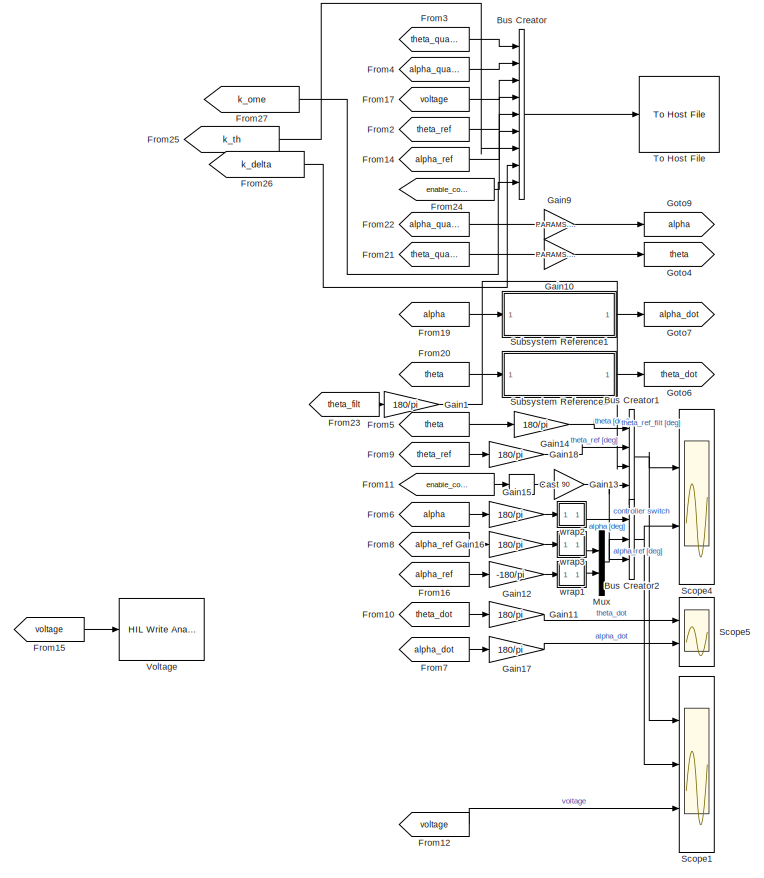
[diagram: root canvas - part 1/2, right side, full height]
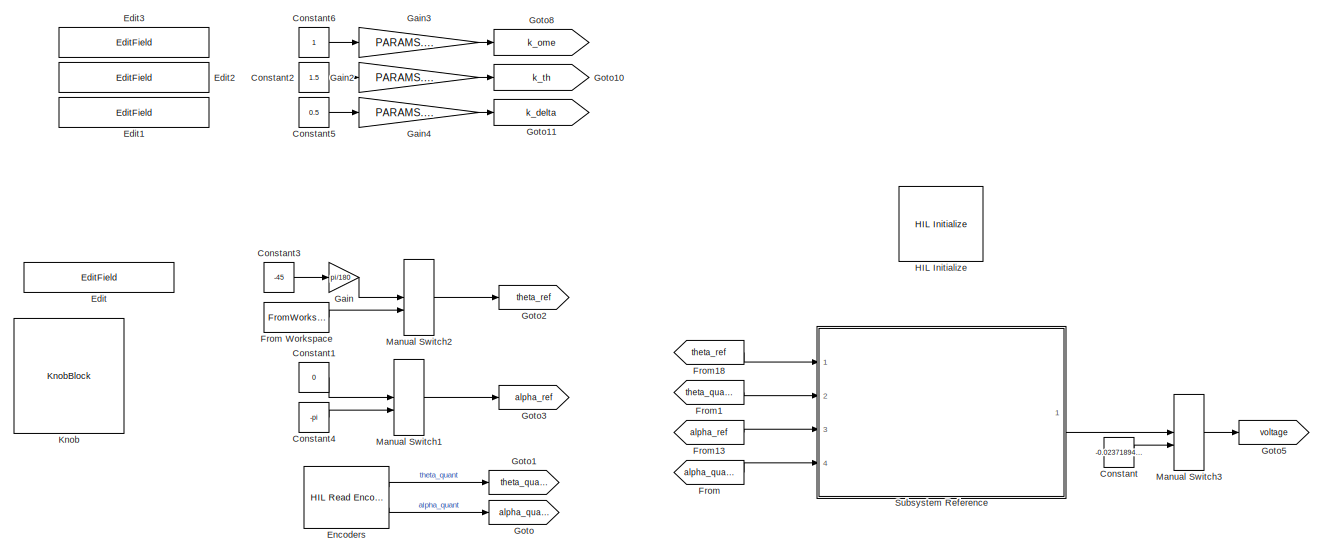
[diagram: root canvas - part 2/2, middle left region]
MODEL slx_53c2704799fc
KIND model
CONFIG AbsTol = auto
CONFIG EnableMultiTasking = on
CONFIG FixedStep = 0.002
CONFIG MaxStep = auto
CONFIG MinStep = auto
CONFIG PostLoadFcn = qc_set_target_type(getConfigSet(bdroot, 'QUARC Default Target Configuration'));
CONFIG RelTol = 1e-3
CONFIG SampleTimeConstraint = Unconstrained
CONFIG Solver = ode1
CONFIG SolverName = ode1
CONFIG StartTime = 0.0
CONFIG StopTime = inf
BLOCK [BusCreator] Bus Creator
  DisplayOption = bar
  InheritFromInputs = on
  Inputs = 9
  Ports = [9, 1]
BLOCK [BusCreator] Bus Creator1
  DisplayOption = bar
  InheritFromInputs = on
  Inputs = 4
  Ports = [4, 1]
BLOCK [BusCreator] Bus Creator2
  DisplayOption = bar
  InheritFromInputs = on
  Inputs = 3
  Ports = [3, 1]
BLOCK [DataTypeConversion] Cast
  OutDataTypeStr = double
  RndMeth = Floor
  SaturateOnIntegerOverflow = off
BLOCK [Constant] Constant
  Value = -0.02371894675437164
BLOCK [Constant] Constant1
  Value = 0
BLOCK [Constant] Constant2
  Value = 1.5
BLOCK [Constant] Constant3
  Value = -45
BLOCK [Constant] Constant4
  Value = -pi
BLOCK [Constant] Constant5
  Value = 0.5
BLOCK [Constant] Constant6
BLOCK [EditField] Edit
  Alignment = Center
  LabelPosition = Hide
  ShowInitialText = on
BLOCK [EditField] Edit1
  Alignment = Center
  LabelPosition = Hide
  ShowInitialText = on
BLOCK [EditField] Edit2
  Alignment = Center
  LabelPosition = Hide
  ShowInitialText = on
BLOCK [EditField] Edit3
  Alignment = Center
  LabelPosition = Hide
  ShowInitialText = on
BLOCK [Reference] Encoders  REF=quarc_library/Data Acquisition/Generic/Timebases/HIL Read Encoder
Timebase
  AttributesFormatString = (%<object_name>)
  Ports = [0, 2]
  SourceBlock = quarc_library/Data Acquisition/Generic/Timebases/HIL Read Encoder\nTimebase
  SourceProductName = QUARC Targets
  SourceType = HIL Read Encoder Timebase
  UserDataPersistent = on
BLOCK [From] From
  GotoTag = alpha_quant
BLOCK [FromWorkspace] From Workspace
  SampleTime = 0
  VariableName = simin.theta_ref
  ZeroCross = on
BLOCK [From] From1
  GotoTag = theta_quant
BLOCK [From] From10
  GotoTag = theta_dot
BLOCK [From] From11
  GotoTag = enable_controller
BLOCK [From] From12
  GotoTag = voltage
BLOCK [From] From13
  GotoTag = alpha_ref
BLOCK [From] From14
  GotoTag = alpha_ref
BLOCK [From] From15
  GotoTag = voltage
BLOCK [From] From16
  GotoTag = alpha_ref
BLOCK [From] From17
  GotoTag = voltage
BLOCK [From] From18
  GotoTag = theta_ref
BLOCK [From] From19
  GotoTag = alpha
BLOCK [From] From2
  GotoTag = theta_ref
BLOCK [From] From20
  GotoTag = theta
BLOCK [From] From21
  GotoTag = theta_quant
BLOCK [From] From22
  GotoTag = alpha_quant
BLOCK [From] From23
  GotoTag = theta_filt
BLOCK [From] From24
  GotoTag = enable_controller
BLOCK [From] From25
  GotoTag = k_th
  TagVisibility = global
BLOCK [From] From26
  GotoTag = k_delta
  TagVisibility = global
BLOCK [From] From27
  GotoTag = k_ome
  TagVisibility = global
BLOCK [From] From3
  GotoTag = theta_quant
BLOCK [From] From4
  GotoTag = alpha_quant
BLOCK [From] From5
  GotoTag = theta
BLOCK [From] From6
  GotoTag = alpha
BLOCK [From] From7
  GotoTag = alpha_dot
BLOCK [From] From8
  GotoTag = alpha_ref
BLOCK [From] From9
  GotoTag = theta_ref
BLOCK [Gain] Gain
  Gain = pi/180
  OutDataTypeStr = Inherit: Inherit via internal rule
  ParamDataTypeStr = Inherit: Inherit via internal rule
  SaturateOnIntegerOverflow = off
BLOCK [Gain] Gain1
  Gain = 180/pi
  OutDataTypeStr = Inherit: Inherit via internal rule
  ParamDataTypeStr = Inherit: Inherit via internal rule
  SaturateOnIntegerOverflow = off
BLOCK [Gain] Gain10
  Gain = PARAMS.angle_quantization
  OutDataTypeStr = Inherit: Inherit via internal rule
  ParamDataTypeStr = Inherit: Inherit via internal rule
  SaturateOnIntegerOverflow = off
BLOCK [Gain] Gain11
  Gain = 180/pi
  OutDataTypeStr = Inherit: Inherit via internal rule
  ParamDataTypeStr = Inherit: Inherit via internal rule
  SaturateOnIntegerOverflow = off
BLOCK [Gain] Gain12
  Gain = -180/pi
  OutDataTypeStr = Inherit: Inherit via internal rule
  ParamDataTypeStr = Inherit: Inherit via internal rule
  SaturateOnIntegerOverflow = off
BLOCK [Gain] Gain13
  Gain = 90
  OutDataTypeStr = Inherit: Inherit via internal rule
  ParamDataTypeStr = Inherit: Inherit via internal rule
  SaturateOnIntegerOverflow = off
BLOCK [Gain] Gain14
  Gain = 180/pi
  OutDataTypeStr = Inherit: Inherit via internal rule
  ParamDataTypeStr = Inherit: Inherit via internal rule
  SaturateOnIntegerOverflow = off
BLOCK [Gain] Gain15
  Gain = 180/pi
  OutDataTypeStr = Inherit: Inherit via internal rule
  ParamDataTypeStr = Inherit: Inherit via internal rule
  SaturateOnIntegerOverflow = off
BLOCK [Gain] Gain16
  Gain = 180/pi
  OutDataTypeStr = Inherit: Inherit via internal rule
  ParamDataTypeStr = Inherit: Inherit via internal rule
  SaturateOnIntegerOverflow = off
BLOCK [Gain] Gain17
  Gain = 180/pi
  OutDataTypeStr = Inherit: Inherit via internal rule
  ParamDataTypeStr = Inherit: Inherit via internal rule
  SaturateOnIntegerOverflow = off
BLOCK [Gain] Gain18
  Gain = 180/pi
  OutDataTypeStr = Inherit: Inherit via internal rule
  ParamDataTypeStr = Inherit: Inherit via internal rule
  SaturateOnIntegerOverflow = off
BLOCK [Gain] Gain2
  Gain = PARAMS.k_th
  OutDataTypeStr = Inherit: Inherit via internal rule
  ParamDataTypeStr = Inherit: Inherit via internal rule
  SaturateOnIntegerOverflow = off
BLOCK [Gain] Gain3
  Gain = PARAMS.k_ome
  OutDataTypeStr = Inherit: Inherit via internal rule
  ParamDataTypeStr = Inherit: Inherit via internal rule
  SaturateOnIntegerOverflow = off
BLOCK [Gain] Gain4
  Gain = PARAMS.k_delta
  OutDataTypeStr = Inherit: Inherit via internal rule
  ParamDataTypeStr = Inherit: Inherit via internal rule
  SaturateOnIntegerOverflow = off
BLOCK [Gain] Gain9
  Gain = PARAMS.angle_quantization
  OutDataTypeStr = Inherit: Inherit via internal rule
  ParamDataTypeStr = Inherit: Inherit via internal rule
  SaturateOnIntegerOverflow = off
BLOCK [Goto] Goto
  GotoTag = alpha_quant
BLOCK [Goto] Goto1
  GotoTag = theta_quant
BLOCK [Goto] Goto10
  GotoTag = k_th
  TagVisibility = global
BLOCK [Goto] Goto11
  GotoTag = k_delta
  TagVisibility = global
BLOCK [Goto] Goto2
  GotoTag = theta_ref
BLOCK [Goto] Goto3
  GotoTag = alpha_ref
BLOCK [Goto] Goto4
  GotoTag = theta
BLOCK [Goto] Goto5
  GotoTag = voltage
BLOCK [Goto] Goto6
  GotoTag = theta_dot
BLOCK [Goto] Goto7
  GotoTag = alpha_dot
BLOCK [Goto] Goto8
  GotoTag = k_ome
  TagVisibility = global
BLOCK [Goto] Goto9
  GotoTag = alpha
BLOCK [Reference] HIL Initialize  REF=quarc_library/Data Acquisition/Generic/Configuration/HIL Initialize
  AttributesFormatString = %<object_name> (%<board_type>-%<board_number>)
  Ports = []
  Priority = -99
  SourceBlock = quarc_library/Data Acquisition/Generic/Configuration/HIL Initialize
  SourceProductName = QUARC Targets
  SourceType = HIL Initialize
  UserDataPersistent = on
BLOCK [KnobBlock] Knob
  ScaleMax = 0.5
  ScaleMin = -0.5
BLOCK [ManualSwitch] Manual Switch1
  CurrentSetting = 0
BLOCK [ManualSwitch] Manual Switch2
BLOCK [ManualSwitch] Manual Switch3
BLOCK [Mux] Mux
  DisplayOption = bar
  Inputs = 2
  Ports = [2, 1]
BLOCK [Scope] Scope1
  Floating = off
  NumInputPorts = 3
  Ports = [3]
  ScopeSpecificationString = Simulink.scopes.TimeScopeBlockCfg('CurrentConfiguration', extmgr.ConfigurationSet(extmgr.Configuration('Core','General UI',true),extmgr.Configuration('Core','Source UI',true),extmgr.Configuration('Sources','WiredSimulink',true,'DataLoggingVariableName','ScopeData4'),extmgr.Configuration('Visuals','Time Domain',true,'SerializedDisplays',{struct('MinYLimReal','-174.81276','MaxYLimReal','419.42364','...<+3088ch>
BLOCK [Scope] Scope4
  Floating = off
  NumInputPorts = 2
  Ports = [2]
  ScopeSpecificationString = Simulink.scopes.TimeScopeBlockCfg('CurrentConfiguration', extmgr.ConfigurationSet(extmgr.Configuration('Core','General UI',true),extmgr.Configuration('Core','Source UI',true),extmgr.Configuration('Sources','WiredSimulink',true,'DataLoggingVariableName','ScopeData2'),extmgr.Configuration('Visuals','Time Domain',true,'SerializedDisplays',{struct('MinYLimReal','-79.17611','MaxYLimReal','72.31608','YL...<+2339ch>
BLOCK [Scope] Scope5
  Floating = off
  NumInputPorts = 2
  Ports = [2]
  ScopeSpecificationString = Simulink.scopes.TimeScopeBlockCfg('CurrentConfiguration', extmgr.ConfigurationSet(extmgr.Configuration('Core','General UI',true),extmgr.Configuration('Core','Source UI',true),extmgr.Configuration('Sources','WiredSimulink',true,'DataLoggingVariableName','ScopeData3'),extmgr.Configuration('Visuals','Time Domain',true,'SerializedDisplays',{struct('MinYLimReal','-261.69551','MaxYLimReal','259.52643','...<+2049ch>
BLOCK [SubSystem] Subsystem Reference
  K_al = 0
  K_al_dot = 0
  K_th = 0
  K_th_dot = 0
  Ports = [4, 1]
  ReferencedSubsystem = s0326_Bad_Lyapunov
  RequestExecContextInheritance = off
BLOCK [SubSystem] Subsystem Reference1
  BlockKeywords = __PRM__SERIALIZED__DATA__:SubsystemReferenceBlock
  Ports = [1, 1]
  ReferencedSubsystem = Filtered_Derivative
  RequestExecContextInheritance = off
  den = den_der_filter
  num = num_der_filter
BLOCK [SubSystem] Subsystem Reference2
  BlockKeywords = __PRM__SERIALIZED__DATA__:SubsystemReferenceBlock
  Ports = [1, 1]
  ReferencedSubsystem = Filtered_Derivative
  RequestExecContextInheritance = off
  den = den_der_filter
  num = num_der_filter
BLOCK [Reference] To Host File  REF=quarc_library/Sinks/To Host/To Host File
  AttributesFormatString = %<final_file_name>
  Ports = [1]
  SourceBlock = quarc_library/Sinks/To Host/To Host File
  SourceProductName = QUARC Targets
  SourceType = To Host File
BLOCK [Reference] Voltage  REF=quarc_library/Data Acquisition/Generic/Immediate I//O/HIL Write Analog
  AttributesFormatString = (%<object_name>)
  Ports = [1]
  SourceBlock = quarc_library/Data Acquisition/Generic/Immediate I//O/HIL Write Analog
  SourceProductName = QUARC Targets
  SourceType = HIL Write Analog
  UserDataPersistent = on
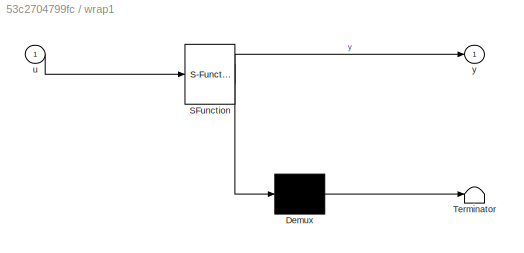
BLOCK [SubSystem] wrap1
  ErrorFcn = Stateflow.Translate.translate
  PermitHierarchicalResolution = ExplicitOnly
  Ports = [1, 1]
  RequestExecContextInheritance = off
  SFBlockType = MATLAB Function
  TreatAsAtomicUnit = on
BLOCK [Demux] wrap1/ Demux 
  DisplayOption = bar
  Outputs = 1
  Ports = [1, 1]
BLOCK [S-Function] wrap1/ SFunction 
  EnableBusSupport = on
  FunctionName = sf_sfun
  PortCounts = [1 2]
  Ports = [1, 2]
  SFcnIsStateOwnerBlock = off
  SFunctionDeploymentMode = off
  Tag = Stateflow S-Function 1
BLOCK [Terminator] wrap1/ Terminator 
BLOCK [Inport] wrap1/u
  IconDisplay = Port number
BLOCK [Outport] wrap1/y
  IconDisplay = Port number
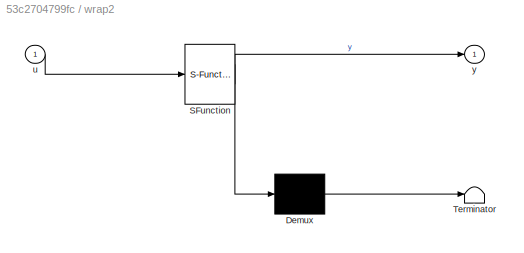
BLOCK [SubSystem] wrap2
  ErrorFcn = Stateflow.Translate.translate
  PermitHierarchicalResolution = ExplicitOnly
  Ports = [1, 1]
  RequestExecContextInheritance = off
  SFBlockType = MATLAB Function
  TreatAsAtomicUnit = on
BLOCK [Demux] wrap2/ Demux 
  DisplayOption = bar
  Outputs = 1
  Ports = [1, 1]
BLOCK [S-Function] wrap2/ SFunction 
  EnableBusSupport = on
  FunctionName = sf_sfun
  PortCounts = [1 2]
  Ports = [1, 2]
  SFcnIsStateOwnerBlock = off
  SFunctionDeploymentMode = off
  Tag = Stateflow S-Function 4
BLOCK [Terminator] wrap2/ Terminator 
BLOCK [Inport] wrap2/u
  IconDisplay = Port number
BLOCK [Outport] wrap2/y
  IconDisplay = Port number
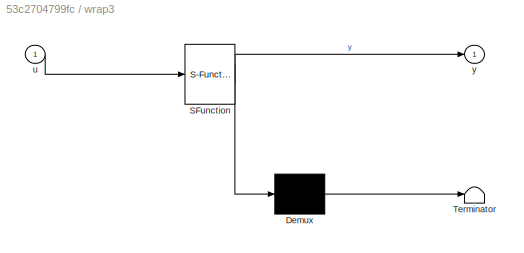
BLOCK [SubSystem] wrap3
  ErrorFcn = Stateflow.Translate.translate
  PermitHierarchicalResolution = ExplicitOnly
  Ports = [1, 1]
  RequestExecContextInheritance = off
  SFBlockType = MATLAB Function
  TreatAsAtomicUnit = on
BLOCK [Demux] wrap3/ Demux 
  DisplayOption = bar
  Outputs = 1
  Ports = [1, 1]
BLOCK [S-Function] wrap3/ SFunction 
  EnableBusSupport = on
  FunctionName = sf_sfun
  PortCounts = [1 2]
  Ports = [1, 2]
  SFcnIsStateOwnerBlock = off
  SFunctionDeploymentMode = off
  Tag = Stateflow S-Function 5
BLOCK [Terminator] wrap3/ Terminator 
BLOCK [Inport] wrap3/u
  IconDisplay = Port number
BLOCK [Outport] wrap3/y
  IconDisplay = Port number
NET Bus Creator1:1 -> Scope1:1, Scope4:1
NET Bus Creator2:1 -> Scope1:2, Scope4:2
LINE Bus Creator:1 -> To Host File:1
LINE Cast:1 -> Gain13:1
LINE Constant1:1 -> Manual Switch1:1
LINE Constant2:1 -> Gain2:1
LINE Constant3:1 -> Gain:1
LINE Constant4:1 -> Manual Switch1:2
LINE Constant5:1 -> Gain4:1
LINE Constant6:1 -> Gain3:1
LINE Constant:1 -> Manual Switch3:2
LINE Encoders:1 -> Goto1:1
LINE Encoders:2 -> Goto:1
LINE From Workspace:1 -> Manual Switch2:2
LINE From10:1 -> Gain11:1
LINE From11:1 -> Cast:1
LINE From12:1 -> Scope1:3
LINE From13:1 -> Subsystem Reference:3
LINE From14:1 -> Bus Creator:5
LINE From15:1 -> Voltage:1
LINE From16:1 -> Gain12:1
LINE From17:1 -> Bus Creator:3
LINE From18:1 -> Subsystem Reference:1
LINE From19:1 -> Subsystem Reference1:1
LINE From1:1 -> Subsystem Reference:2
LINE From20:1 -> Subsystem Reference2:1
LINE From21:1 -> Gain10:1
LINE From22:1 -> Gain9:1
LINE From23:1 -> Gain1:1
LINE From24:1 -> Bus Creator:6
LINE From25:1 -> Bus Creator:7
LINE From26:1 -> Bus Creator:8
LINE From27:1 -> Bus Creator:9
LINE From2:1 -> Bus Creator:4
LINE From3:1 -> Bus Creator:1
LINE From4:1 -> Bus Creator:2
LINE From5:1 -> Gain14:1
LINE From6:1 -> Gain15:1
LINE From7:1 -> Gain17:1
LINE From8:1 -> Gain16:1
LINE From9:1 -> Gain18:1
LINE From:1 -> Subsystem Reference:4
LINE Gain10:1 -> Goto4:1
LINE Gain11:1 -> Scope5:1
LINE Gain12:1 -> wrap1:1
NET Gain13:1 -> Bus Creator1:4, Bus Creator2:3
LINE Gain14:1 -> Bus Creator1:1
LINE Gain15:1 -> wrap2:1
LINE Gain16:1 -> wrap3:1
LINE Gain17:1 -> Scope5:2
LINE Gain18:1 -> Bus Creator1:2
LINE Gain1:1 -> Bus Creator1:3
LINE Gain2:1 -> Goto10:1
LINE Gain3:1 -> Goto8:1
LINE Gain4:1 -> Goto11:1
LINE Gain9:1 -> Goto9:1
LINE Gain:1 -> Manual Switch2:1
LINE Manual Switch1:1 -> Goto3:1
LINE Manual Switch2:1 -> Goto2:1
LINE Manual Switch3:1 -> Goto5:1
LINE Mux:1 -> Bus Creator2:2
LINE Subsystem Reference1:1 -> Goto7:1
LINE Subsystem Reference2:1 -> Goto6:1
LINE Subsystem Reference:1 -> Manual Switch3:1
LINE wrap1:1 -> Mux:2
LINE wrap2:1 -> Bus Creator2:1
LINE wrap3:1 -> Mux:1
note: NET lines group one-source signal fan-out (src -> all destinations, sorted); 1:1 wires keep LINE
CHART wrap1 states=1 transitions=1
  STATE_LABEL 'eML_blk_kernel()'
  STATE_LABEL 'SCRIPT:\nfunction y = wrap(u)\nstop_condition = false;\ny = u;\nwhile ~stop_condition\n    if y > 270\n        y = y - 360;\n    elseif y < -270\n        y = y + 360;\n    else\n        stop_condition = true;\n    end\nend\n    '  <repeated x3 — deduplicated; at blocks: wrap1, wrap2, wrap3>
CHART wrap2 states=1 transitions=1
  STATE_LABEL 'eML_blk_kernel()'
CHART wrap3 states=1 transitions=1
  STATE_LABEL 'eML_blk_kernel()'
